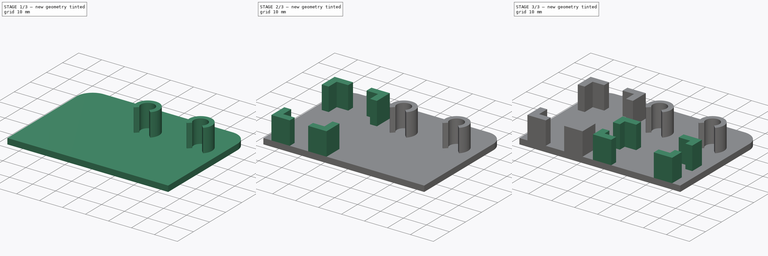
[diagram: build sequence overview — one tinted view per stage of 3, left to right]
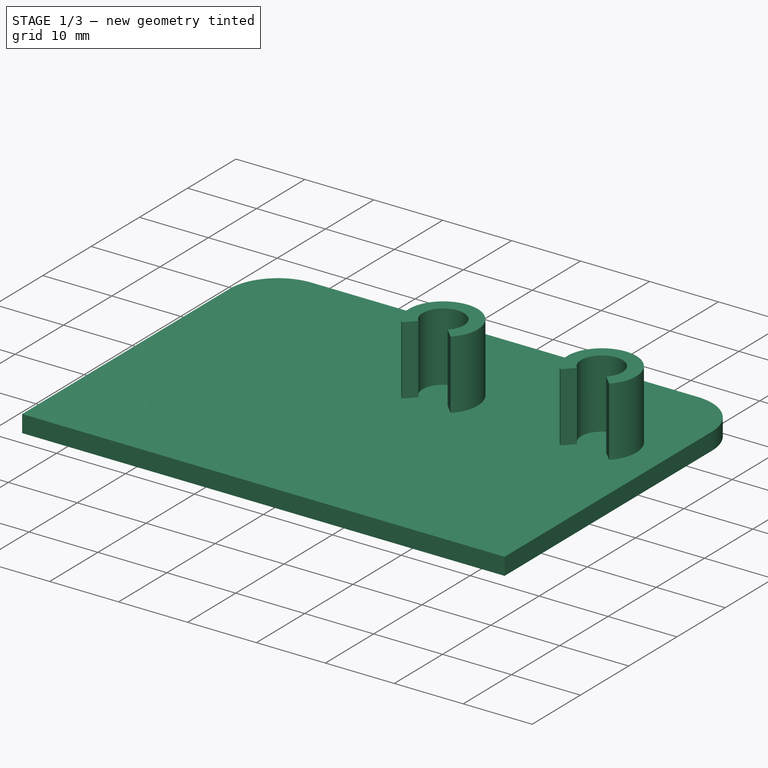
[diagram: stage 1 of 3 — iso view after this stage's code; geometry added in this stage tinted green]
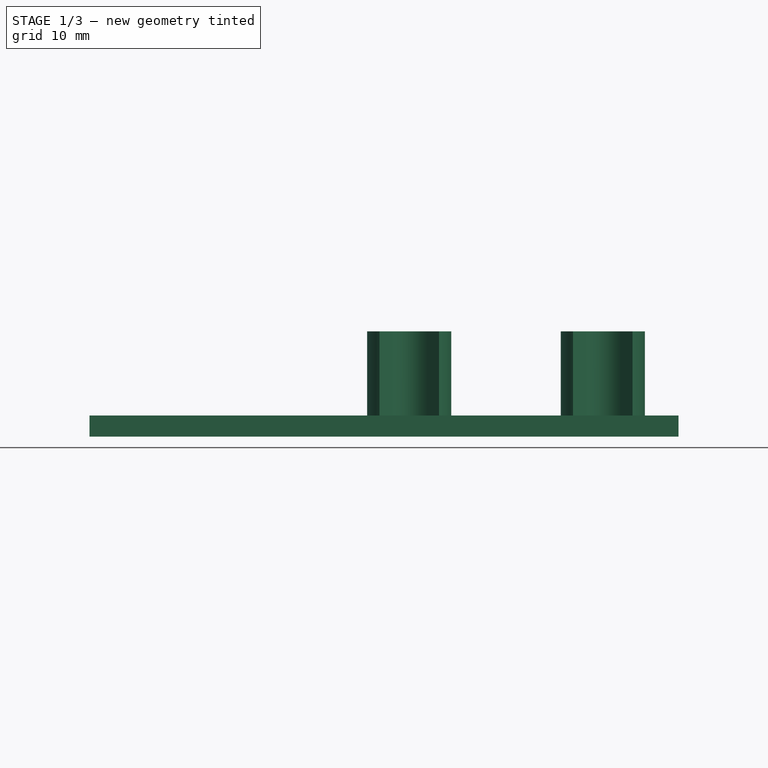
[diagram: stage 1 of 3 — front view after this stage's code; geometry added in this stage tinted green]
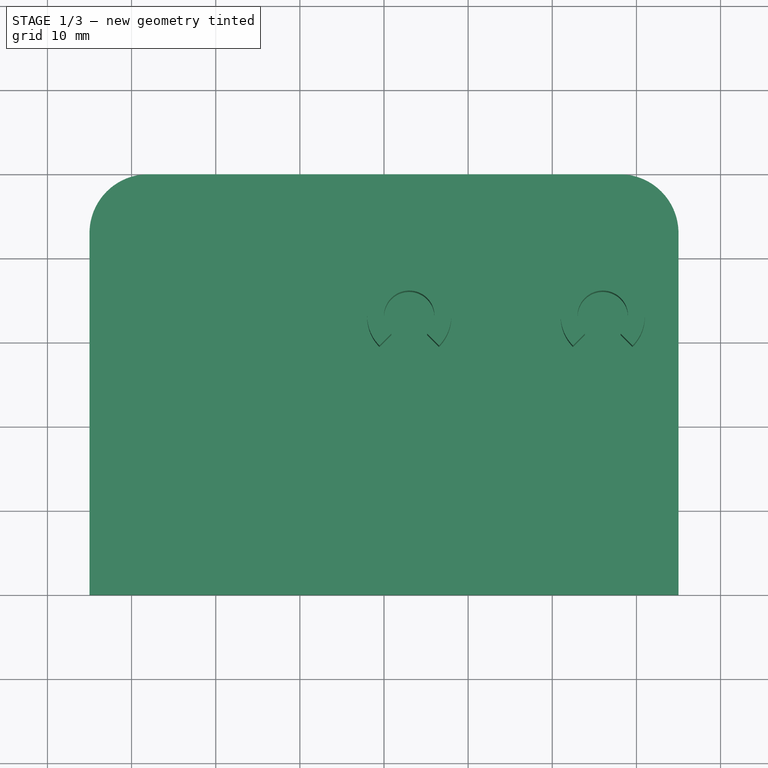
[diagram: stage 1 of 3 — top view after this stage's code; geometry added in this stage tinted green]
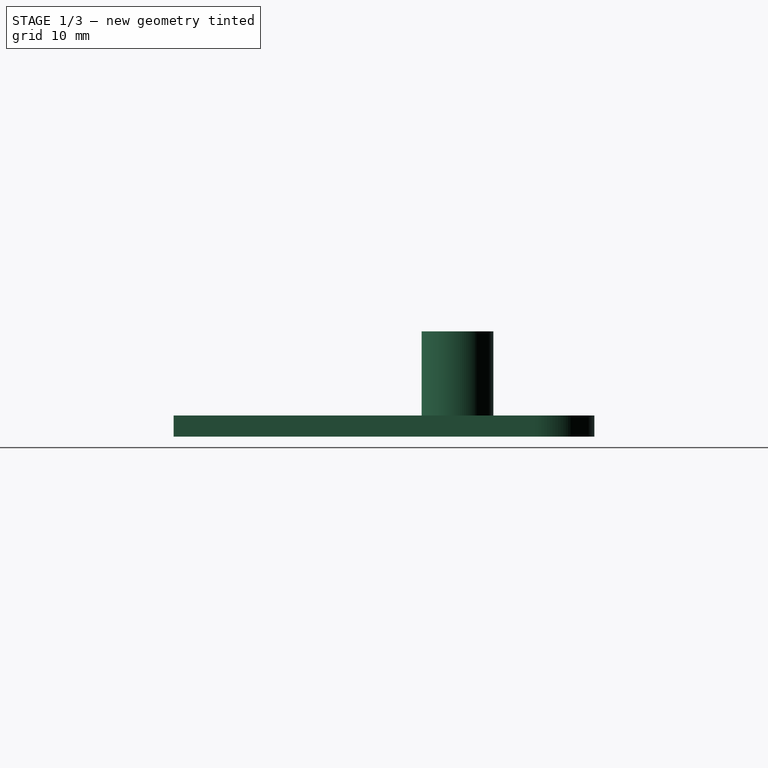
[diagram: stage 1 of 3 — right view after this stage's code; geometry added in this stage tinted green]
FCSTD DOCUMENT  (FreeCAD 0.18R14975 (Git))
Label: Swich_Base
License: All rights reserved
LicenseURL: http://en.wikipedia.org/wiki/All_rights_reserved
objects: Sketcher::SketchObject×4, PartDesign::Pad×4, PartDesign::Fillet×4
note: 16 computed .brp shape members not serialized (recipe doc carries the construction recipe); baked Part::Feature solids carry a one-line shape summary decoded from their .brp

FEATURE [Sketcher::SketchObject] Sketch001  label="BasePlate_Sketch"
  MapMode = 5
  sketch-geometry (4):
    g0: LineSegment StartX=-35 StartY=50 StartZ=0 EndX=35 EndY=50 EndZ=0
    g1: LineSegment StartX=35 StartY=50 StartZ=0 EndX=35 EndY=0 EndZ=0
    g2: LineSegment StartX=35 StartY=0 StartZ=0 EndX=-35 EndY=0 EndZ=0
    g3: LineSegment StartX=-35 StartY=0 StartZ=0 EndX=-35 EndY=50 EndZ=0
  constraints (12):
    c: Coincident(g0,g1)
    c: Coincident(g1,g2)
    c: Coincident(g2,g3)
    c: Coincident(g3,g0)
    c: Horizontal(g0)
    c: Horizontal(g2)
    c: Vertical(g1)
    c: Vertical(g3)
    c: PointOnObject(g1,g-1)
    c: DistanceX(g0,g-1) = 35
    c: DistanceX(g0,g0) = 70
    c: DistanceY(g1,g1) = 50
FEATURE [PartDesign::Pad] Pad  label="BasePlate"
  Length = 2.5
  Length2 = 100
  Profile = -> Sketch001
  Type = 0
FEATURE [Sketcher::SketchObject] Sketch010  label="LED_Sketch"
  MapMode = 5
  Placement = pos=(0,0,2.5) rot=(0,0,1;0rad)
  Support = -> [Pad]
  sketch-geometry (12):
    g0: ArcOfCircle CenterX=3 CenterY=33 CenterZ=0 NormalX=0 NormalY=0 NormalZ=1 AngleXU=0 Radius=3 StartAngle=5.49779 EndAngle=10.2102
    g1: ArcOfCircle CenterX=3 CenterY=33 CenterZ=0 NormalX=0 NormalY=0 NormalZ=1 AngleXU=0 Radius=5 StartAngle=5.49779 EndAngle=10.2102
    g2: LineSegment StartX=5.12132 StartY=30.8787 StartZ=0 EndX=6.53553 EndY=29.4645 EndZ=0
    g3: LineSegment StartX=-0.535534 StartY=29.4645 StartZ=0 EndX=0.87868 EndY=30.8787 EndZ=0
    g4: ArcOfCircle CenterX=26 CenterY=33 CenterZ=0 NormalX=0 NormalY=0 NormalZ=1 AngleXU=0 Radius=3 StartAngle=5.49779 EndAngle=10.2102
    g5: ArcOfCircle CenterX=26 CenterY=33 CenterZ=0 NormalX=0 NormalY=0 NormalZ=1 AngleXU=0 Radius=5 StartAngle=5.49779 EndAngle=10.2102
    g6: LineSegment StartX=28.1213 StartY=30.8787 StartZ=0 EndX=29.5355 EndY=29.4645 EndZ=0
    g7: LineSegment StartX=22.4645 StartY=29.4645 StartZ=0 EndX=23.8787 EndY=30.8787 EndZ=0
    g8: LineSegment [constr] StartX=3 StartY=33 StartZ=0 EndX=13.1422 EndY=22.8578 EndZ=0
    g9: LineSegment [constr] StartX=3 StartY=33 StartZ=0 EndX=-7.23953 EndY=22.7605 EndZ=0
    g10: LineSegment [constr] StartX=26 StartY=33 StartZ=0 EndX=39.1213 EndY=19.8787 EndZ=0
    g11: LineSegment [constr] StartX=26 StartY=33 StartZ=0 EndX=12.6043 EndY=19.6043 EndZ=0
  constraints (34):
    c: Radius(g0) = 3
    c: Coincident(g1,g0)
    c: Radius(g1) = 5
    c: Coincident(g3,g0)
    c: Coincident(g3,g1)
    c: Coincident(g2,g0)
    c: Coincident(g2,g1)
    c: DistanceX(g-1,g0) = 3
    c: DistanceY(g-1,g0) = 33
    c: Coincident(g5,g4)
    c: Coincident(g7,g4)
    c: Coincident(g7,g5)
    c: Coincident(g6,g4)
    c: Coincident(g6,g5)
    c: Radius(g4) = 3
    c: Radius(g5) = 5
    c: Coincident(g8,g0)
    c: Coincident(g9,g0)
    c: Angle(g8,g-2) = 2.35619
    c: Angle(g-2,g9) = 2.35619
    c: PointOnObject(g1,g8)
    c: PointOnObject(g0,g8)
    c: PointOnObject(g0,g9)
    c: PointOnObject(g1,g9)
    c: Coincident(g10,g4)
    c: Coincident(g11,g4)
    c: Angle(g-2,g10) = 0.785398
    c: Angle(g-2,g11) = 2.35619
    c: PointOnObject(g5,g10)
    c: PointOnObject(g4,g10)
    c: PointOnObject(g4,g11)
    c: PointOnObject(g5,g11)
    c: DistanceY(g-1,g4) = 33
    c: DistanceX(g0,g4) = 23
FEATURE [PartDesign::Pad] Pad006  label="LED"
  Length = 10
  Length2 = 100
  Profile = -> Sketch010
  Type = 0
FEATURE [PartDesign::Fillet] Fillet003
  Base = -> Pad006 [Edge1,Edge2]
  Radius = 7
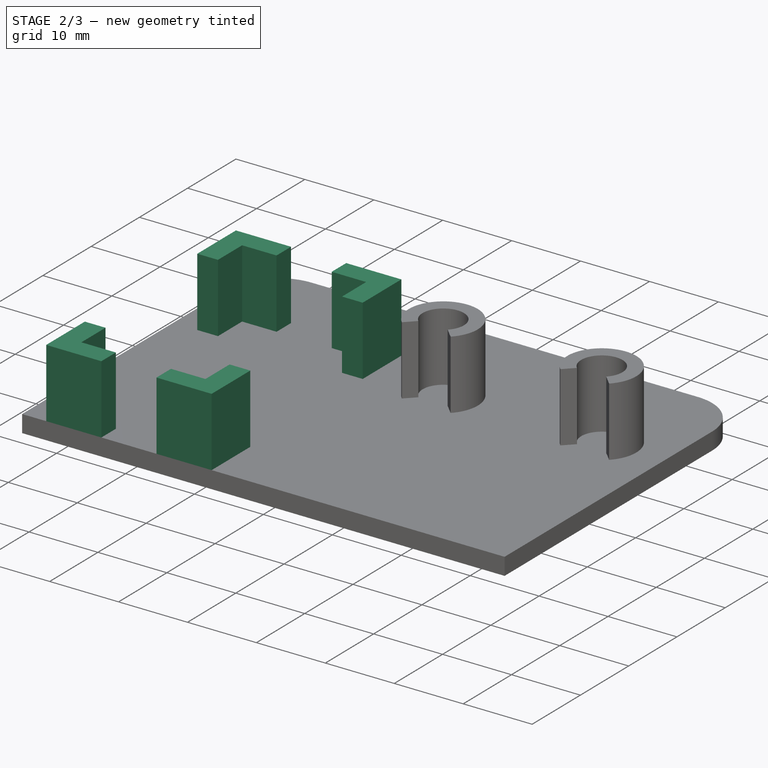
[diagram: stage 2 of 3 — iso view after this stage's code; geometry added in this stage tinted green]
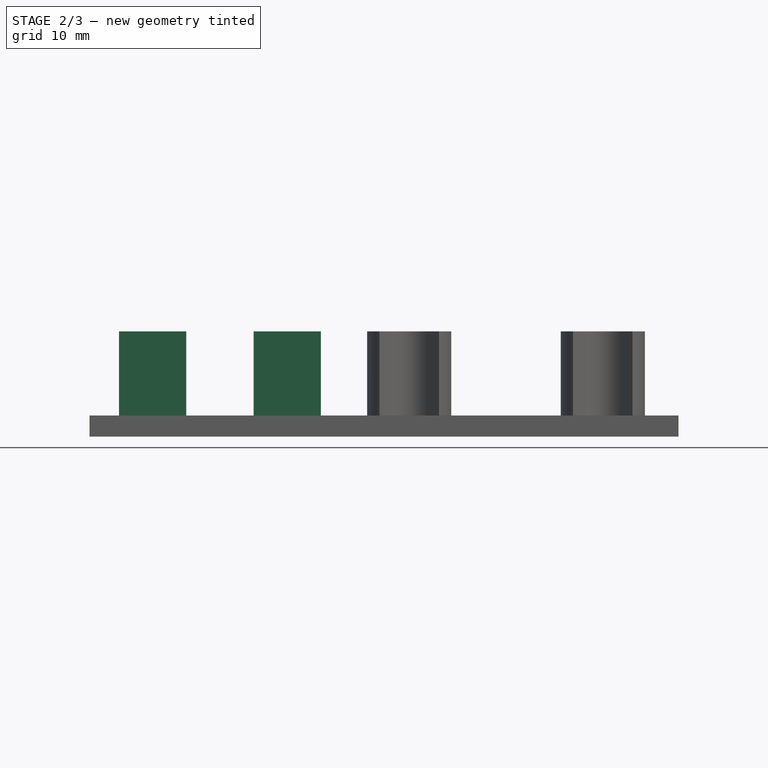
[diagram: stage 2 of 3 — front view after this stage's code; geometry added in this stage tinted green]
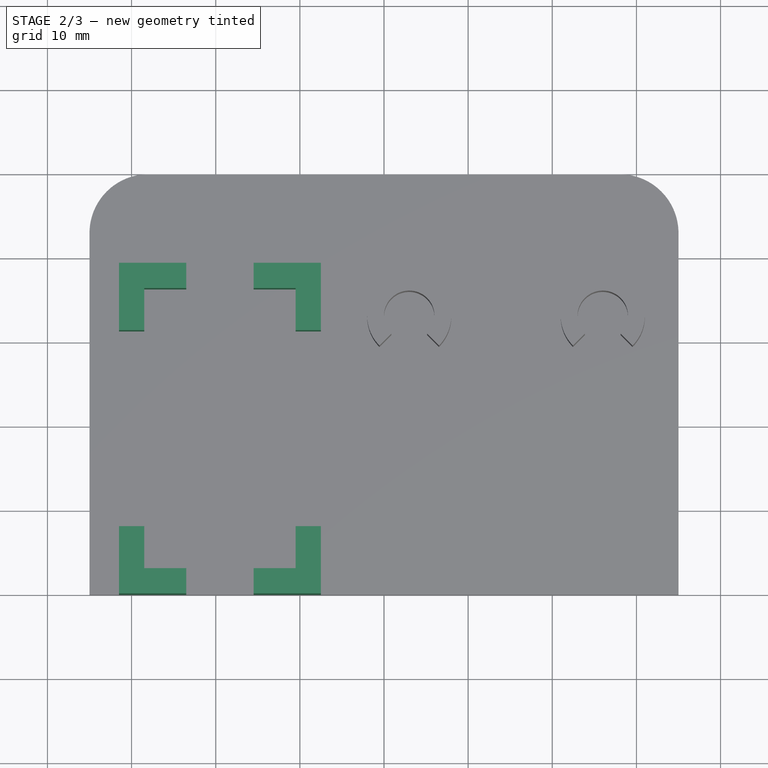
[diagram: stage 2 of 3 — top view after this stage's code; geometry added in this stage tinted green]
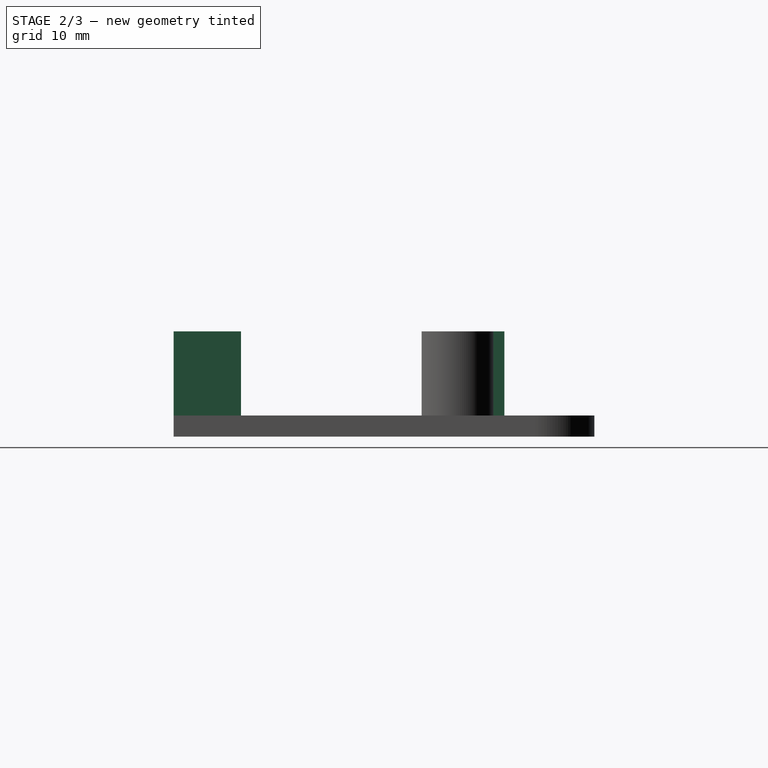
[diagram: stage 2 of 3 — right view after this stage's code; geometry added in this stage tinted green]
FEATURE [PartDesign::Pad] Pad004  label="Arduino"
  Length = 10
  Length2 = 100
  Profile = -> Sketch008
  Type = 0
FEATURE [PartDesign::Fillet] Fillet002
  Base = -> Pad004 [Edge2,Edge1]
  Radius = 7
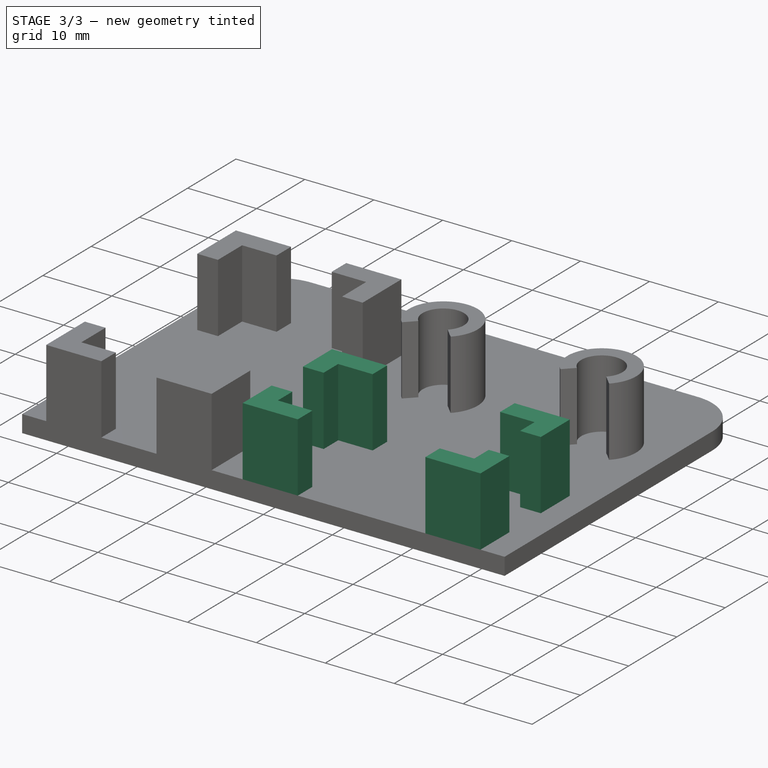
[diagram: stage 3 of 3 — iso view after this stage's code; geometry added in this stage tinted green]
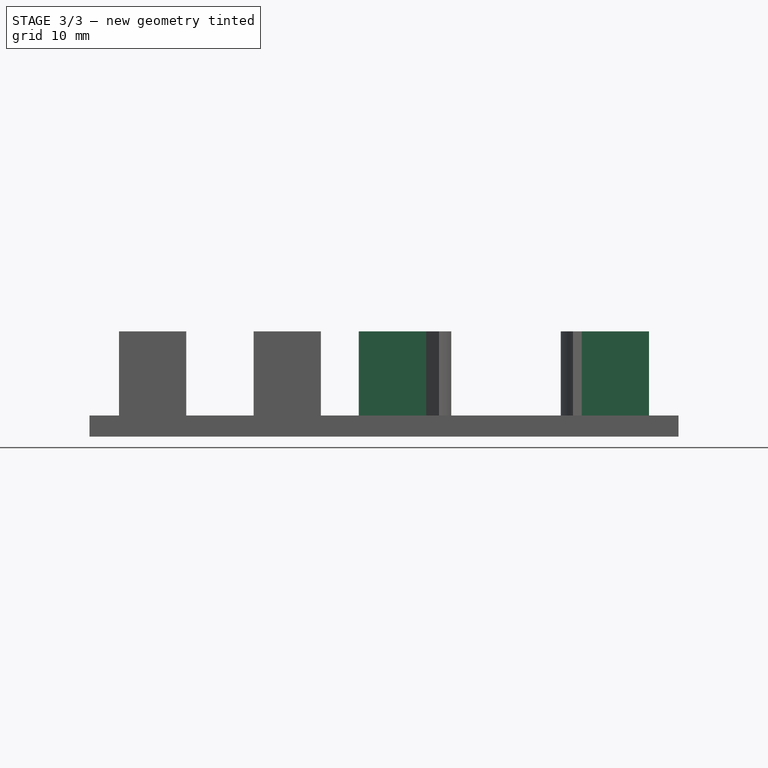
[diagram: stage 3 of 3 — front view after this stage's code; geometry added in this stage tinted green]
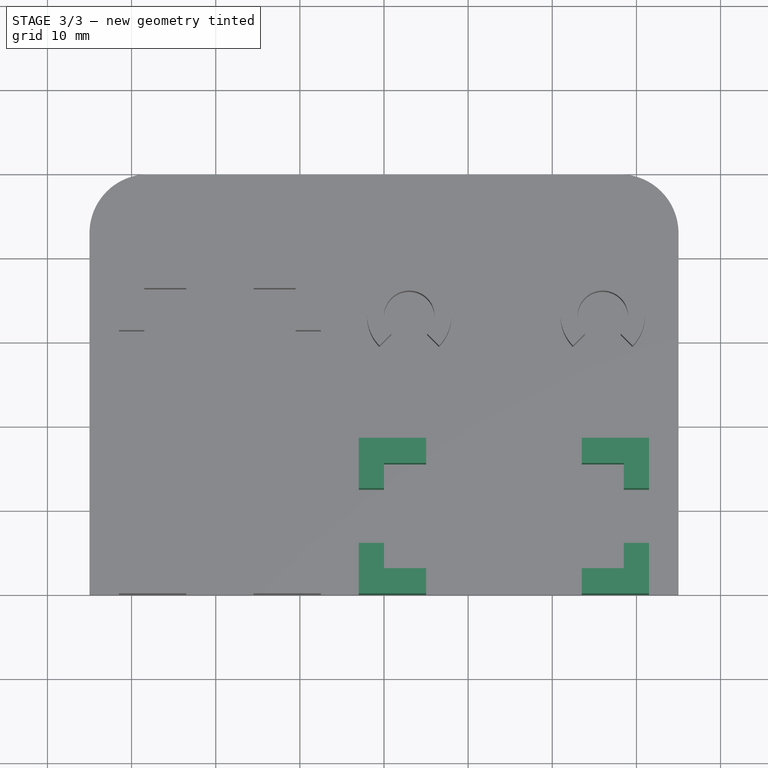
[diagram: stage 3 of 3 — top view after this stage's code; geometry added in this stage tinted green]
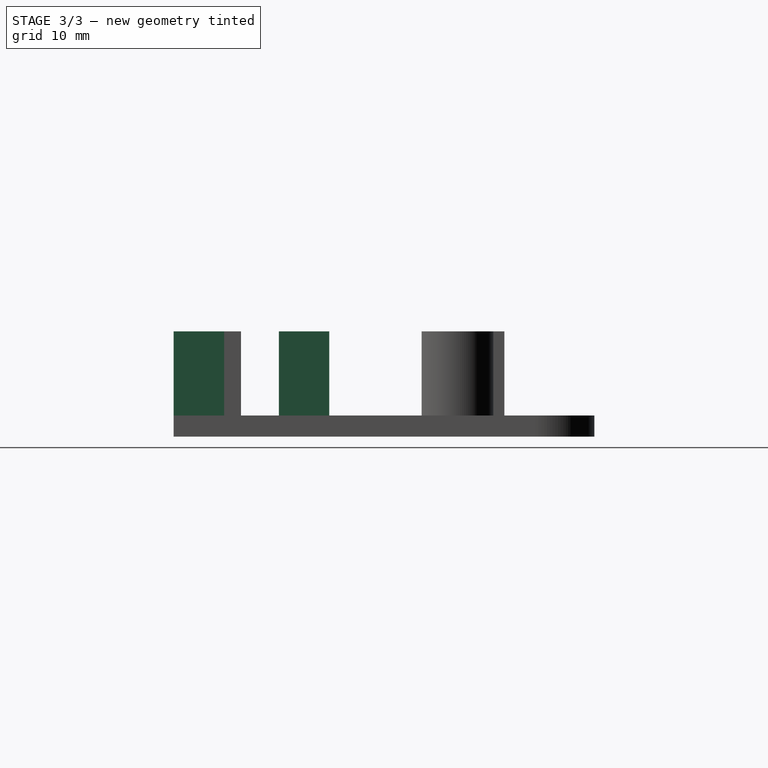
[diagram: stage 3 of 3 — right view after this stage's code; geometry added in this stage tinted green]
FEATURE [Sketcher::SketchObject] Sketch006  label="RFModule_Sketch"
  MapMode = 5
  Placement = pos=(0,0,2.5) rot=(0,0,1;0rad)
  Support = -> [Pad]
  sketch-geometry (24):
    g0: LineSegment StartX=23.5 StartY=18.5 StartZ=0 EndX=31.5 EndY=18.5 EndZ=0
    g1: LineSegment StartX=31.5 StartY=18.5 StartZ=0 EndX=31.5 EndY=12.5 EndZ=0
    g2: LineSegment StartX=31.5 StartY=12.5 StartZ=0 EndX=28.5 EndY=12.5 EndZ=0
    g3: LineSegment StartX=28.5 StartY=12.5 StartZ=0 EndX=28.5 EndY=15.5 EndZ=0
    g4: LineSegment StartX=28.5 StartY=15.5 StartZ=0 EndX=23.5 EndY=15.5 EndZ=0
    g5: LineSegment StartX=23.5 StartY=15.5 StartZ=0 EndX=23.5 EndY=18.5 EndZ=0
    g6: LineSegment StartX=5 StartY=18.5 StartZ=0 EndX=-3 EndY=18.5 EndZ=0
    g7: LineSegment StartX=-3 StartY=12.5 StartZ=0 EndX=0 EndY=12.5 EndZ=0
    g8: LineSegment StartX=0 StartY=12.5 StartZ=0 EndX=0 EndY=15.5 EndZ=0
    g9: LineSegment StartX=0 StartY=15.5 StartZ=0 EndX=5 EndY=15.5 EndZ=0
    g10: LineSegment StartX=5 StartY=15.5 StartZ=0 EndX=5 EndY=18.5 EndZ=0
    g11: LineSegment StartX=5 StartY=0 StartZ=0 EndX=-3 EndY=0 EndZ=0
    g12: LineSegment StartX=-3 StartY=6 StartZ=0 EndX=0 EndY=6 EndZ=0
    g13: LineSegment StartX=0 StartY=6 StartZ=0 EndX=0 EndY=3 EndZ=0
    g14: LineSegment StartX=0 StartY=3 StartZ=0 EndX=5 EndY=3 EndZ=0
    g15: LineSegment StartX=5 StartY=3 StartZ=0 EndX=5 EndY=0 EndZ=0
    g16: LineSegment StartX=23.5 StartY=0 StartZ=0 EndX=31.5 EndY=0 EndZ=0
    g17: LineSegment StartX=31.5 StartY=0 StartZ=0 EndX=31.5 EndY=6 EndZ=0
    g18: LineSegment StartX=31.5 StartY=6 StartZ=0 EndX=28.5 EndY=6 EndZ=0
    g19: LineSegment StartX=28.5 StartY=6 StartZ=0 EndX=28.5 EndY=3 EndZ=0
    g20: LineSegment StartX=28.5 StartY=3 StartZ=0 EndX=23.5 EndY=3 EndZ=0
    g21: LineSegment StartX=23.5 StartY=3 StartZ=0 EndX=23.5 EndY=0 EndZ=0
    g22: LineSegment StartX=-3 StartY=18.5 StartZ=0 EndX=-3 EndY=12.5 EndZ=0
    g23: LineSegment StartX=-3 StartY=6 StartZ=0 EndX=-3 EndY=0 EndZ=0
  constraints (72):
    c: Horizontal(g0)
    c: Coincident(g0,g1)
    c: Vertical(g1)
    c: Coincident(g1,g2)
    c: Coincident(g2,g3)
    c: Vertical(g3)
    c: Coincident(g3,g4)
    c: Coincident(g4,g5)
    c: Coincident(g5,g0)
    c: Vertical(g5)
    c: Horizontal(g2)
    c: Horizontal(g4)
    c: DistanceX(g2,g2) = 3
    c: DistanceX(g-1,g0) = 31.5
    c: DistanceY(g-1,g0) = 18.5
    c: DistanceY(g5,g5) = 3
    c: DistanceY(g1,g1) = 6
    c: DistanceX(g0,g0) = 8
    c: Horizontal(g6)
    c: Coincident(g7,g8)
    c: Vertical(g8)
    c: Coincident(g8,g9)
    c: Coincident(g9,g10)
    c: Coincident(g10,g6)
    c: Vertical(g10)
    c: Horizontal(g7)
    c: Horizontal(g9)
    c: Horizontal(g16)
    c: Coincident(g16,g17)
    c: Vertical(g17)
    c: Coincident(g17,g18)
    c: Coincident(g18,g19)
    c: Vertical(g19)
    c: Coincident(g19,g20)
    c: Coincident(g20,g21)
    c: Coincident(g21,g16)
    c: Vertical(g21)
    c: Horizontal(g18)
    c: Horizontal(g20)
    c: Horizontal(g11)
    c: Coincident(g12,g13)
    c: Vertical(g13)
    c: Coincident(g13,g14)
    c: Coincident(g14,g15)
    c: Coincident(g15,g11)
    c: Vertical(g15)
    c: Horizontal(g12)
    c: Horizontal(g14)
    c: DistanceX(g6,g6) = 8
    c: DistanceY(g7,g6) = 6
    c: DistanceY(g10,g10) = 3
    c: DistanceX(g7,g7) = 3
    c: DistanceX(g8,g3) = 28.5
    c: DistanceY(g17,g17) = 6
    c: DistanceX(g16,g16) = 8
    c: DistanceX(g18,g18) = 3
    c: DistanceY(g21,g21) = 3
    c: DistanceY(g11,g12) = 6
    c: DistanceX(g11,g11) = 8
    c: DistanceY(g15,g15) = 3
    c: DistanceX(g12,g12) = 3
    c: DistanceY(g19,g3) = 12.5
    c: DistanceY(g13,g8) = 12.5
    c: DistanceY(g-1,g6) = 18.5
    c: DistanceX(g13,g19) = 28.5
    c: DistanceX(g-1,g16) = 31.5
    c: Coincident(g22,g6)
    c: Coincident(g22,g7)
    c: Vertical(g22)
    c: Coincident(g23,g12)
    c: Coincident(g23,g11)
    c: Vertical(g23)
FEATURE [Sketcher::SketchObject] Sketch008  label="Arduino_Sketch"
  MapMode = 5
  Placement = pos=(0,0,2.5) rot=(0,0,1;0rad)
  Support = -> [Pad]
  sketch-geometry (24):
    g0: LineSegment StartX=-15.5 StartY=39.3 StartZ=0 EndX=-7.5 EndY=39.3 EndZ=0
    g1: LineSegment StartX=-7.5 StartY=39.3 StartZ=0 EndX=-7.5 EndY=31.3 EndZ=0
    g2: LineSegment StartX=-7.5 StartY=31.3 StartZ=0 EndX=-10.5 EndY=31.3 EndZ=0
    g3: LineSegment StartX=-10.5 StartY=31.3 StartZ=0 EndX=-10.5 EndY=36.3 EndZ=0
    g4: LineSegment StartX=-10.5 StartY=36.3 StartZ=0 EndX=-15.5 EndY=36.3 EndZ=0
    g5: LineSegment StartX=-15.5 StartY=36.3 StartZ=0 EndX=-15.5 EndY=39.3 EndZ=0
    g6: LineSegment StartX=-23.5 StartY=39.3 StartZ=0 EndX=-31.5 EndY=39.3 EndZ=0
    g7: LineSegment StartX=-31.5 StartY=39.3 StartZ=0 EndX=-31.5 EndY=31.3 EndZ=0
    g8: LineSegment StartX=-31.5 StartY=31.3 StartZ=0 EndX=-28.5 EndY=31.3 EndZ=0
    g9: LineSegment StartX=-28.5 StartY=31.3 StartZ=0 EndX=-28.5 EndY=36.3 EndZ=0
    g10: LineSegment StartX=-28.5 StartY=36.3 StartZ=0 EndX=-23.5 EndY=36.3 EndZ=0
    g11: LineSegment StartX=-23.5 StartY=36.3 StartZ=0 EndX=-23.5 EndY=39.3 EndZ=0
    g12: LineSegment StartX=-23.5 StartY=0 StartZ=0 EndX=-31.5 EndY=0 EndZ=0
    g13: LineSegment StartX=-31.5 StartY=0 StartZ=0 EndX=-31.5 EndY=8 EndZ=0
    g14: LineSegment StartX=-31.5 StartY=8 StartZ=0 EndX=-28.5 EndY=8 EndZ=0
    g15: LineSegment StartX=-28.5 StartY=8 StartZ=0 EndX=-28.5 EndY=3 EndZ=0
    g16: LineSegment StartX=-28.5 StartY=3 StartZ=0 EndX=-23.5 EndY=3 EndZ=0
    g17: LineSegment StartX=-23.5 StartY=3 StartZ=0 EndX=-23.5 EndY=0 EndZ=0
    g18: LineSegment StartX=-15.5 StartY=0 StartZ=0 EndX=-7.5 EndY=0 EndZ=0
    g19: LineSegment StartX=-7.5 StartY=0 StartZ=0 EndX=-7.5 EndY=8 EndZ=0
    g20: LineSegment StartX=-7.5 StartY=8 StartZ=0 EndX=-10.5 EndY=8 EndZ=0
    g21: LineSegment StartX=-10.5 StartY=8 StartZ=0 EndX=-10.5 EndY=3 EndZ=0
    g22: LineSegment StartX=-10.5 StartY=3 StartZ=0 EndX=-15.5 EndY=3 EndZ=0
    g23: LineSegment StartX=-15.5 StartY=3 StartZ=0 EndX=-15.5 EndY=0 EndZ=0
  constraints (72):
    c: Horizontal(g0)
    c: Coincident(g0,g1)
    c: Vertical(g1)
    c: Coincident(g1,g2)
    c: Coincident(g2,g3)
    c: Vertical(g3)
    c: Coincident(g3,g4)
    c: Coincident(g4,g5)
    c: Coincident(g5,g0)
    c: Vertical(g5)
    c: Horizontal(g2)
    c: Horizontal(g4)
    c: DistanceX(g2,g2) = 3
    c: DistanceX(g-1,g0) = -7.5
    c: DistanceY(g-1,g0) = 39.3
    c: DistanceY(g5,g5) = 3
    c: DistanceY(g1,g1) = 8
    c: DistanceX(g0,g0) = 8
    c: Horizontal(g6)
    c: Coincident(g6,g7)
    c: Vertical(g7)
    c: Coincident(g7,g8)
    c: Coincident(g8,g9)
    c: Vertical(g9)
    c: Coincident(g9,g10)
    c: Coincident(g10,g11)
    c: Coincident(g11,g6)
    c: Vertical(g11)
    c: Horizontal(g8)
    c: Horizontal(g10)
    c: Horizontal(g18)
    c: Coincident(g18,g19)
    c: Vertical(g19)
    c: Coincident(g19,g20)
    c: Coincident(g20,g21)
    c: Vertical(g21)
    c: Coincident(g21,g22)
    c: Coincident(g22,g23)
    c: Coincident(g23,g18)
    c: Vertical(g23)
    c: Horizontal(g20)
    c: Horizontal(g22)
    c: Horizontal(g12)
    c: Coincident(g12,g13)
    c: Vertical(g13)
    c: Coincident(g13,g14)
    c: Coincident(g14,g15)
    c: Vertical(g15)
    c: Coincident(g15,g16)
    c: Coincident(g16,g17)
    c: Coincident(g17,g12)
    c: Vertical(g17)
    c: Horizontal(g14)
    c: Horizontal(g16)
    c: DistanceX(g6,g6) = 8
    c: DistanceY(g7,g7) = 8
    c: DistanceY(g11,g11) = 3
    c: DistanceX(g8,g8) = 3
    c: DistanceX(g9,g3) = 18
    c: DistanceY(g19,g19) = 8
    c: DistanceX(g18,g18) = 8
    c: DistanceX(g20,g20) = 3
    c: DistanceY(g23,g23) = 3
    c: DistanceY(g13,g13) = 8
    c: DistanceX(g12,g12) = 8
    c: DistanceY(g17,g17) = 3
    c: DistanceX(g14,g14) = 3
    c: DistanceY(g21,g3) = 33.3
    c: DistanceY(g15,g9) = 33.3
    c: DistanceY(g-1,g6) = 39.3
    c: DistanceX(g15,g21) = 18
    c: DistanceX(g-1,g18) = -7.5
FEATURE [PartDesign::Pad] Pad003  label="RFModule"
  Length = 10
  Length2 = 100
  Profile = -> Sketch006
  Type = 0
FEATURE [PartDesign::Fillet] Fillet
  Base = -> Pad [Edge2,Edge1]
  Radius = 7
FEATURE [PartDesign::Fillet] Fillet001
  Base = -> Pad003 [Edge1,Edge2]
  Radius = 7
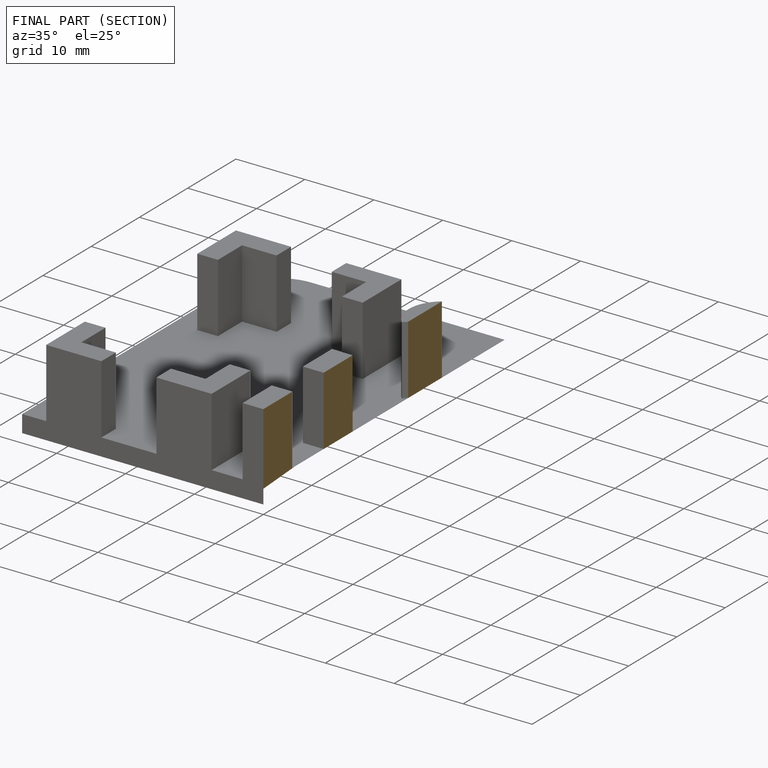
[diagram: finished part — half-section view (interior)]
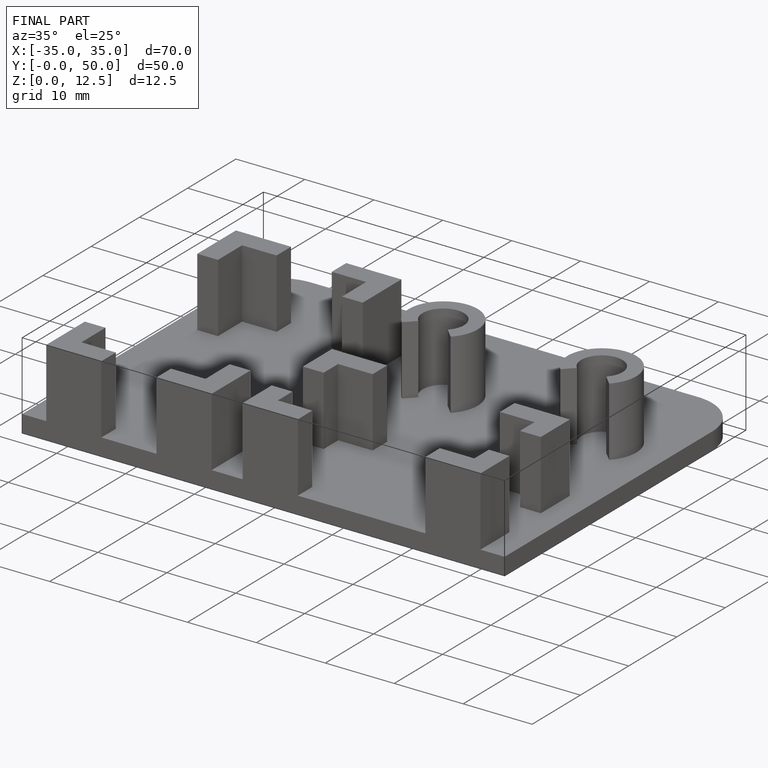
[diagram: finished part — iso view with bounding-box wireframe]
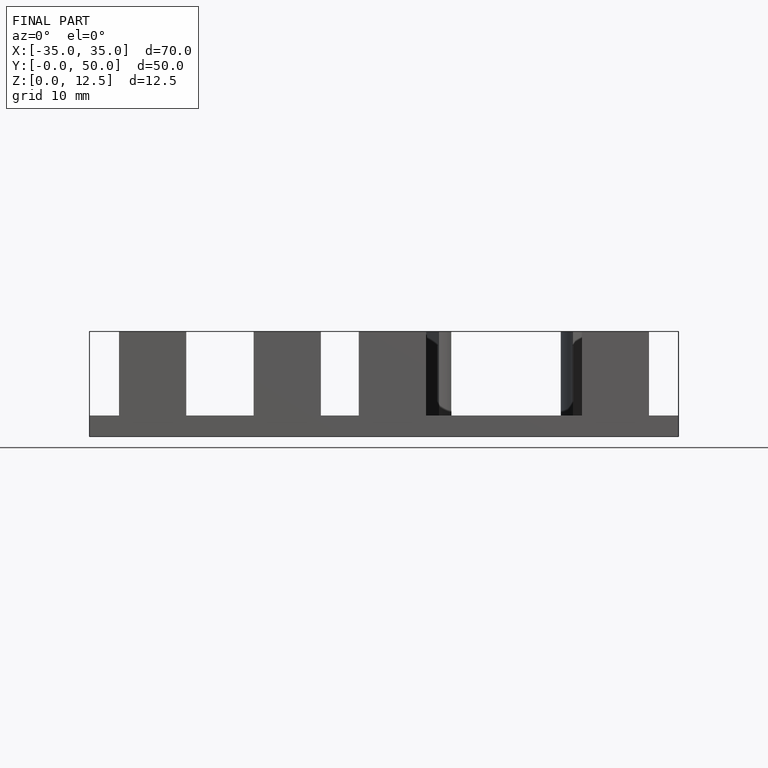
[diagram: finished part — front view with bounding-box wireframe]
